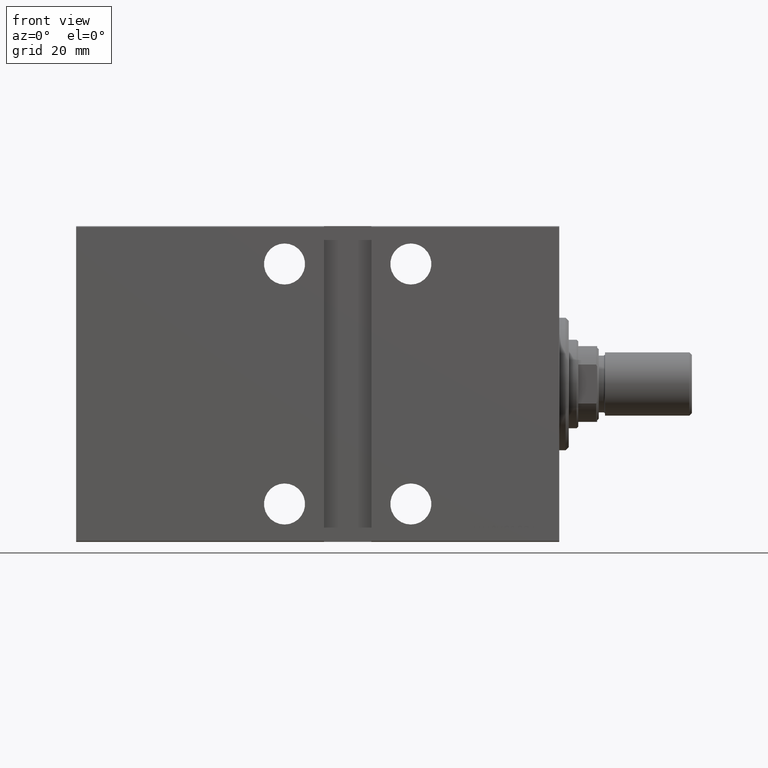
[diagram: clean part render]
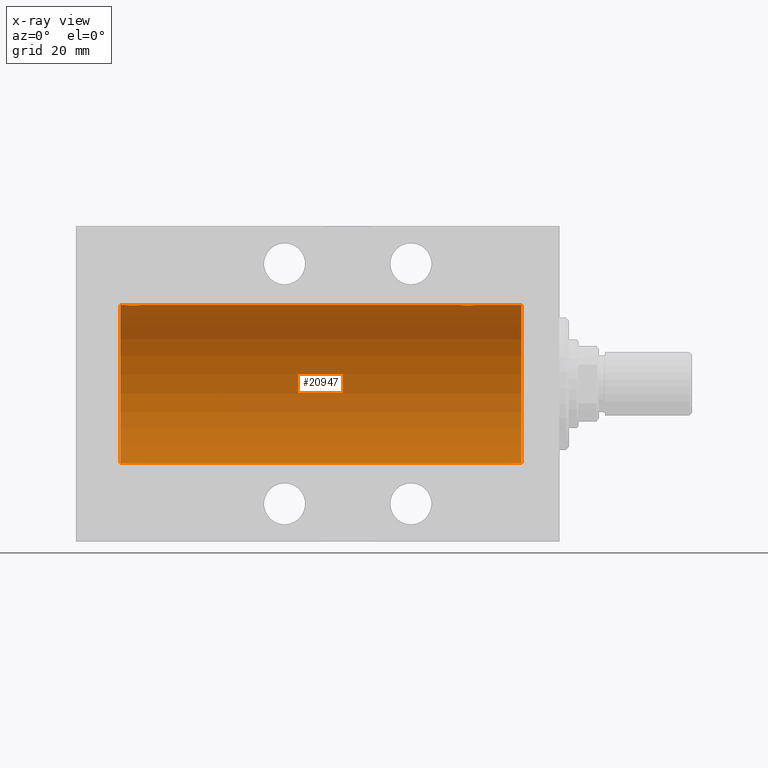
[diagram: x-ray — body ghosted, one internal face saturated and labeled with its STEP entity id]
A machine part, front view, then the same camera in x-ray: the body is ghosted and one INTERNAL B-rep face — a face not visible from any outside direction — is saturated and labeled: STEP entity #20947.
In plain terms, the highlighted cylindrical surface (partial cylindrical patch) has radius 25 mm, axis along (1, 0, -0).
Its self-contained STEP definition (entity closure, byte-faithful):
#42 = CARTESIAN_POINT ( 'NONE',  ( 135.3259657003945904, -2.484007091859755434, 24.87630842367763151 ) ) ;
#493 = DIRECTION ( 'NONE',  ( -1.000000000000000000, -0.000000000000000000, -0.000000000000000000 ) ) ;
#1391 = DIRECTION ( 'NONE',  ( -1.000000000000000000, -0.000000000000000000, -0.000000000000000000 ) ) ;
#1587 = CARTESIAN_POINT ( 'NONE',  ( 26.57985090779070703, -0.6480119923854216202, 24.99212088949391131 ) ) ;
#2509 = VECTOR ( 'NONE', #21161, 1000.000000000000000 ) ;
#2517 = CARTESIAN_POINT ( 'NONE',  ( 132.5000000000000000, -1.941505016884693205E-23, 25.00000000000000000 ) ) ;
#2733 = CARTESIAN_POINT ( 'NONE',  ( 137.1682764149395268, -1.255214705003177889, 24.96884293994577320 ) ) ;
#2774 = CARTESIAN_POINT ( 'NONE',  ( 31.50000000000000000, -6.470145921101463186E-15, 25.00000000000000000 ) ) ;
#2803 = DIRECTION ( 'NONE',  ( -1.000000000000000000, -0.000000000000000000, -0.000000000000000000 ) ) ;
#3186 = CARTESIAN_POINT ( 'NONE',  ( 135.1632358963854585, -2.500125740978183853, 24.87467329022545570 ) ) ;
#3414 = CARTESIAN_POINT ( 'NONE',  ( 134.8329350482193831, -2.499872792855069470, 24.87469871246082675 ) ) ;
#4125 = EDGE_CURVE ( 'NONE', #16781, #8596, #26435, .T. ) ;
#4179 = CARTESIAN_POINT ( 'NONE',  ( 12.00000000000001066, 0.000000000000000000, 25.00000000000000000 ) ) ;
#4737 = CARTESIAN_POINT ( 'NONE',  ( 26.50000000000000355, -1.940518940753166940E-23, 25.00000000000000000 ) ) ;
#4808 = ORIENTED_EDGE ( 'NONE', *, *, #22970, .F. ) ;
#4957 = CARTESIAN_POINT ( 'NONE',  ( 26.62784030591393147, -0.8058335233485444116, 24.98746277938383642 ) ) ;
#5404 = CARTESIAN_POINT ( 'NONE',  ( 31.50000000000000000, -6.470145921101463186E-15, 25.00000000000000000 ) ) ;
#5833 = CARTESIAN_POINT ( 'NONE',  ( 31.16827641493956591, -1.255214705003181441, 24.96884293994578030 ) ) ;
#6769 = CARTESIAN_POINT ( 'NONE',  ( 134.3509560983090978, -2.419770561643896922, 24.88263927071751880 ) ) ;
#6992 = CARTESIAN_POINT ( 'NONE',  ( 137.5000000000000284, -0.3305063766663746128, 25.00000000000000711 ) ) ;
#7034 = LINE ( 'NONE', #24522, #2509 ) ;
#7317 = AXIS2_PLACEMENT_3D ( 'NONE', #9069, #19384, #43586 ) ;
#7873 = CARTESIAN_POINT ( 'NONE',  ( 27.01250184165601809, -1.525407911884361756, 24.95379469572361586 ) ) ;
#7994 = CARTESIAN_POINT ( 'NONE',  ( 26.50000000000000355, -1.940518940753166940E-23, 25.00000000000000000 ) ) ;
#8001 = CIRCLE ( 'NONE', #7317, 25.00000000000000000 ) ;
#8596 = VERTEX_POINT ( 'NONE', #12873 ) ;
#8999 = CARTESIAN_POINT ( 'NONE',  ( 139.0000000000000000, 0.000000000000000000, 25.00000000000000000 ) ) ;
#9069 = CARTESIAN_POINT ( 'NONE',  ( 139.0000000000000000, 0.000000000000000000, 0.000000000000000000 ) ) ;
#9378 = ORIENTED_EDGE ( 'NONE', *, *, #24706, .F. ) ;
#9455 = CARTESIAN_POINT ( 'NONE',  ( 132.6278403059139919, -0.8058335233485485194, 24.98746277938383642 ) ) ;
#9643 = CARTESIAN_POINT ( 'NONE',  ( 30.52256774340189338, -1.989585286700240596, 24.92087098724766747 ) ) ;
#9904 = CARTESIAN_POINT ( 'NONE',  ( 132.5798509077906999, -0.6480119923854186226, 24.99212088949390420 ) ) ;
#10317 = DIRECTION ( 'NONE',  ( -1.000000000000000000, 0.000000000000000000, 0.000000000000000000 ) ) ;
#11021 = CARTESIAN_POINT ( 'NONE',  ( 27.47463817756919724, -1.987446652080258724, 24.92104239223420947 ) ) ;
#11240 = CARTESIAN_POINT ( 'NONE',  ( 28.83293504821939024, -2.499872792855073467, 24.87469871246082675 ) ) ;
#11900 = CARTESIAN_POINT ( 'NONE',  ( 26.75239748980449406, -1.106703319666880514, 24.97594585958024282 ) ) ;
#12826 = CARTESIAN_POINT ( 'NONE',  ( 133.8896320349114148, -2.245863995402891611, 24.89899750494197761 ) ) ;
#12851 = VERTEX_POINT ( 'NONE', #2774 ) ;
#12873 = CARTESIAN_POINT ( 'NONE',  ( 137.5000000000000000, 9.792438154224103788E-16, 25.00000000000000000 ) ) ;
#13044 = CARTESIAN_POINT ( 'NONE',  ( 137.5000000000000000, 9.792438154224103788E-16, 25.00000000000000000 ) ) ;
#13726 = CARTESIAN_POINT ( 'NONE',  ( 136.2508402392405458, -2.170728182476716839, 24.90574631553725027 ) ) ;
#14586 = EDGE_CURVE ( 'NONE', #14736, #33402, #8001, .T. ) ;
#14599 = CARTESIAN_POINT ( 'NONE',  ( 28.67052319885732103, -2.483544361357262531, 24.87635491893501793 ) ) ;
#14601 = DIRECTION ( 'NONE',  ( -1.000000000000000000, -0.000000000000000000, -0.000000000000000000 ) ) ;
#14736 = VERTEX_POINT ( 'NONE', #34176 ) ;
#15848 = EDGE_CURVE ( 'NONE', #34095, #35351, #31430, .T. ) ;
#16192 = B_SPLINE_CURVE_WITH_KNOTS ( 'NONE', 3,
 ( #4737, #21552, #28291, #1587, #4957, #11900, #25590, #7873, #39259, #21343, #11021, #35224, #35012, #17962, #31645, #14599, #11240, #19743, #36339, #23327, #19298, #43059, #37001, #9643, #32753, #42842, #33405, #5833, #43283, #39477, #22439, #5404 ),
 .UNSPECIFIED., .F., .F.,
 ( 4, 2, 2, 2, 2, 2, 2, 2, 2, 2, 2, 2, 2, 2, 2, 4 ),
 ( 0.007821024441662268595, 0.008309723826317871528, 0.008798423210973474462, 0.009287122595629077396, 0.009775821980284680329, 0.01026452136494028326, 0.01075322074959588620, 0.01124192013425148913, 0.01173061951890709206, 0.01221931890356269326, 0.01270801828821829793, 0.01319671767287389913, 0.01368541705752950380, 0.01417411644218510500, 0.01466281582684070967, 0.01564021459615191553 ),
 .UNSPECIFIED. ) ;
#16404 = CARTESIAN_POINT ( 'NONE',  ( 137.4334935523974934, -0.6588655613945783029, 24.99312727339971119 ) ) ;
#16473 = DIRECTION ( 'NONE',  ( 0.000000000000000000, 0.000000000000000000, 1.000000000000000000 ) ) ;
#16537 = VECTOR ( 'NONE', #1391, 1000.000000000000000 ) ;
#16627 = CARTESIAN_POINT ( 'NONE',  ( 135.8043566091629941, -2.372734907014162786, 24.88722742718433167 ) ) ;
#16781 = VERTEX_POINT ( 'NONE', #42805 ) ;
#17533 = CARTESIAN_POINT ( 'NONE',  ( 139.0000000000000000, 0.000000000000000000, 25.00000000000000000 ) ) ;
#17962 = CARTESIAN_POINT ( 'NONE',  ( 28.19211657594194520, -2.371528299825740760, 24.88734287464371420 ) ) ;
#18797 = VECTOR ( 'NONE', #493, 1000.000000000000000 ) ;
#19211 = EDGE_LOOP ( 'NONE', ( #29250, #42456, #28136, #36243, #23608, #4808, #24334, #9378 ) ) ;
#19298 = CARTESIAN_POINT ( 'NONE',  ( 29.80435660916301543, -2.372734907014168115, 24.88722742718433878 ) ) ;
#19384 = DIRECTION ( 'NONE',  ( -1.000000000000000000, 0.000000000000000000, 0.000000000000000000 ) ) ;
#19743 = CARTESIAN_POINT ( 'NONE',  ( 29.16323589638542657, -2.500125740978187849, 24.87467329022545570 ) ) ;
#19788 = CARTESIAN_POINT ( 'NONE',  ( 136.1072384583841313, -2.247417070759885060, 24.89885693081946982 ) ) ;
#19855 = CYLINDRICAL_SURFACE ( 'NONE', #35378, 25.00000000000000000 ) ;
#20229 = CARTESIAN_POINT ( 'NONE',  ( 132.4999999999999716, -0.1631750940176176501, 25.00000000000000711 ) ) ;
#20463 = CARTESIAN_POINT ( 'NONE',  ( 136.9853803371709375, -1.528152964861306584, 24.95362559291379156 ) ) ;
#20947 = ADVANCED_FACE ( 'NONE', ( #36890 ), #19855, .F. ) ;
#21161 = DIRECTION ( 'NONE',  ( -1.000000000000000000, -0.000000000000000000, -0.000000000000000000 ) ) ;
#21343 = CARTESIAN_POINT ( 'NONE',  ( 27.34616663850663087, -1.881857718844711869, 24.92933960374833902 ) ) ;
#21552 = CARTESIAN_POINT ( 'NONE',  ( 26.50000000000000711, -0.1631750940176204812, 25.00000000000000711 ) ) ;
#22439 = CARTESIAN_POINT ( 'NONE',  ( 31.49999999999996447, -0.3305063766663697833, 24.99999999999999645 ) ) ;
#22970 = EDGE_CURVE ( 'NONE', #16781, #12851, #7034, .T. ) ;
#23327 = CARTESIAN_POINT ( 'NONE',  ( 29.64560666148631896, -2.420689345803753501, 24.88254961038874313 ) ) ;
#23590 = CARTESIAN_POINT ( 'NONE',  ( 132.7523974898045083, -1.106703319666884733, 24.97594585958023217 ) ) ;
#23608 = ORIENTED_EDGE ( 'NONE', *, *, #40712, .T. ) ;
#23810 = CARTESIAN_POINT ( 'NONE',  ( 133.4746381775692043, -1.987446652080248732, 24.92104239223420592 ) ) ;
#24334 = ORIENTED_EDGE ( 'NONE', *, *, #4125, .T. ) ;
#24522 = CARTESIAN_POINT ( 'NONE',  ( 139.0000000000000000, 0.000000000000000000, 25.00000000000000000 ) ) ;
#24706 = EDGE_CURVE ( 'NONE', #33402, #8596, #38375, .T. ) ;
#24964 = EDGE_CURVE ( 'NONE', #27052, #35351, #39793, .T. ) ;
#25590 = CARTESIAN_POINT ( 'NONE',  ( 26.82988709719076681, -1.252049606094334910, 24.96900299967627390 ) ) ;
#26435 = B_SPLINE_CURVE_WITH_KNOTS ( 'NONE', 3,
 ( #2517, #20229, #27185, #9904, #9455, #23590, #29868, #41080, #40857, #43546, #23810, #36821, #12826, #30769, #6769, #43764, #3414, #3186, #42, #30309, #16627, #19788, #13726, #43987, #30540, #33449, #20463, #2733, #40179, #16404, #6992, #13044 ),
 .UNSPECIFIED., .F., .F.,
 ( 4, 2, 2, 2, 2, 2, 2, 2, 2, 2, 2, 2, 2, 2, 2, 4 ),
 ( 0.007821024441662306759, 0.008309723826317914896, 0.008798423210973523034, 0.009287122595629131172, 0.009775821980284739310, 0.01026452136494034745, 0.01075322074959595559, 0.01124192013425156372, 0.01173061951890717186, 0.01221931890356278000, 0.01270801828821838814, 0.01319671767287399627, 0.01368541705752960441, 0.01417411644218521255, 0.01466281582684082069, 0.01564021459615200227 ),
 .UNSPECIFIED. ) ;
#27052 = VERTEX_POINT ( 'NONE', #39385 ) ;
#27185 = CARTESIAN_POINT ( 'NONE',  ( 132.5158215994234752, -0.3254210271412192879, 24.99840249400844527 ) ) ;
#28136 = ORIENTED_EDGE ( 'NONE', *, *, #24964, .T. ) ;
#28291 = CARTESIAN_POINT ( 'NONE',  ( 26.51582159942343253, -0.3254210271412220079, 24.99840249400844527 ) ) ;
#29250 = ORIENTED_EDGE ( 'NONE', *, *, #14586, .F. ) ;
#29868 = CARTESIAN_POINT ( 'NONE',  ( 132.8298870971908059, -1.252049606094330914, 24.96900299967627745 ) ) ;
#30309 = CARTESIAN_POINT ( 'NONE',  ( 135.6456066614863403, -2.420689345803753501, 24.88254961038873603 ) ) ;
#30540 = CARTESIAN_POINT ( 'NONE',  ( 136.6512113355911140, -1.884161199660612240, 24.92916496727982079 ) ) ;
#30769 = CARTESIAN_POINT ( 'NONE',  ( 134.1921165759419239, -2.371528299825738539, 24.88734287464371064 ) ) ;
#31430 = LINE ( 'NONE', #17533, #18797 ) ;
#31645 = CARTESIAN_POINT ( 'NONE',  ( 28.35095609830903740, -2.419770561643901363, 24.88263927071751169 ) ) ;
#32753 = CARTESIAN_POINT ( 'NONE',  ( 30.65121133559111755, -1.884161199660612906, 24.92916496727982434 ) ) ;
#33402 = VERTEX_POINT ( 'NONE', #8999 ) ;
#33405 = CARTESIAN_POINT ( 'NONE',  ( 30.98538033717094464, -1.528152964861309915, 24.95362559291378801 ) ) ;
#33449 = CARTESIAN_POINT ( 'NONE',  ( 136.8818595414864205, -1.653834020452934483, 24.94550385189584318 ) ) ;
#33515 = CARTESIAN_POINT ( 'NONE',  ( 139.0000000000000000, 0.000000000000000000, 0.000000000000000000 ) ) ;
#34075 = AXIS2_PLACEMENT_3D ( 'NONE', #38108, #10317, #38540 ) ;
#34095 = VERTEX_POINT ( 'NONE', #7994 ) ;
#34176 = CARTESIAN_POINT ( 'NONE',  ( 139.0000000000000000, 3.061616997868383043E-15, -25.00000000000000000 ) ) ;
#35012 = CARTESIAN_POINT ( 'NONE',  ( 27.88963203491136511, -2.245863995402893831, 24.89899750494197406 ) ) ;
#35224 = CARTESIAN_POINT ( 'NONE',  ( 27.74616804575498108, -2.169003991399864439, 24.90589728951138682 ) ) ;
#35351 = VERTEX_POINT ( 'NONE', #4179 ) ;
#35378 = AXIS2_PLACEMENT_3D ( 'NONE', #33515, #2803, #16473 ) ;
#35471 = LINE ( 'NONE', #41547, #16537 ) ;
#35500 = VECTOR ( 'NONE', #14601, 1000.000000000000000 ) ;
#36243 = ORIENTED_EDGE ( 'NONE', *, *, #15848, .F. ) ;
#36339 = CARTESIAN_POINT ( 'NONE',  ( 29.32596570039460104, -2.484007091859757654, 24.87630842367763861 ) ) ;
#36821 = CARTESIAN_POINT ( 'NONE',  ( 133.7461680457550131, -2.169003991399856890, 24.90589728951138682 ) ) ;
#36890 = FACE_OUTER_BOUND ( 'NONE', #19211, .T. ) ;
#37001 = CARTESIAN_POINT ( 'NONE',  ( 30.25084023924055288, -2.170728182476714174, 24.90574631553725027 ) ) ;
#38108 = CARTESIAN_POINT ( 'NONE',  ( 12.00000000000001066, 0.000000000000000000, 0.000000000000000000 ) ) ;
#38375 = LINE ( 'NONE', #42169, #35500 ) ;
#38540 = DIRECTION ( 'NONE',  ( 0.000000000000000000, 0.000000000000000000, 1.000000000000000000 ) ) ;
#39259 = CARTESIAN_POINT ( 'NONE',  ( 27.11587617213528389, -1.651251241585097063, 24.94567559498348430 ) ) ;
#39385 = CARTESIAN_POINT ( 'NONE',  ( 12.00000000000001066, 3.061616997868383043E-15, -25.00000000000000000 ) ) ;
#39477 = CARTESIAN_POINT ( 'NONE',  ( 31.43349355239747567, -0.6588655613945901823, 24.99312727339969697 ) ) ;
#39793 = CIRCLE ( 'NONE', #34075, 25.00000000000000000 ) ;
#40179 = CARTESIAN_POINT ( 'NONE',  ( 137.2460637909406671, -1.109818057797406832, 24.97580694515542277 ) ) ;
#40712 = EDGE_CURVE ( 'NONE', #34095, #12851, #16192, .T. ) ;
#40857 = CARTESIAN_POINT ( 'NONE',  ( 133.1158761721353017, -1.651251241585098395, 24.94567559498349141 ) ) ;
#41080 = CARTESIAN_POINT ( 'NONE',  ( 133.0125018416560465, -1.525407911884357093, 24.95379469572362297 ) ) ;
#41547 = CARTESIAN_POINT ( 'NONE',  ( 139.0000000000000000, 3.061616997868383043E-15, -25.00000000000000000 ) ) ;
#42169 = CARTESIAN_POINT ( 'NONE',  ( 139.0000000000000000, 0.000000000000000000, 25.00000000000000000 ) ) ;
#42456 = ORIENTED_EDGE ( 'NONE', *, *, #43854, .T. ) ;
#42805 = CARTESIAN_POINT ( 'NONE',  ( 132.5000000000000000, -1.941505016884693205E-23, 25.00000000000000000 ) ) ;
#42842 = CARTESIAN_POINT ( 'NONE',  ( 30.88185954148645251, -1.653834020452935816, 24.94550385189585029 ) ) ;
#43059 = CARTESIAN_POINT ( 'NONE',  ( 30.10723845838409929, -2.247417070759890834, 24.89885693081946272 ) ) ;
#43283 = CARTESIAN_POINT ( 'NONE',  ( 31.24606379094066710, -1.109818057797416824, 24.97580694515542632 ) ) ;
#43546 = CARTESIAN_POINT ( 'NONE',  ( 133.3461666385065882, -1.881857718844712313, 24.92933960374834257 ) ) ;
#43586 = DIRECTION ( 'NONE',  ( 0.000000000000000000, 0.000000000000000000, 1.000000000000000000 ) ) ;
#43764 = CARTESIAN_POINT ( 'NONE',  ( 134.6705231988572962, -2.483544361357258978, 24.87635491893502149 ) ) ;
#43854 = EDGE_CURVE ( 'NONE', #14736, #27052, #35471, .T. ) ;
#43987 = CARTESIAN_POINT ( 'NONE',  ( 136.5225677434019076, -1.989585286700244149, 24.92087098724766037 ) ) ;